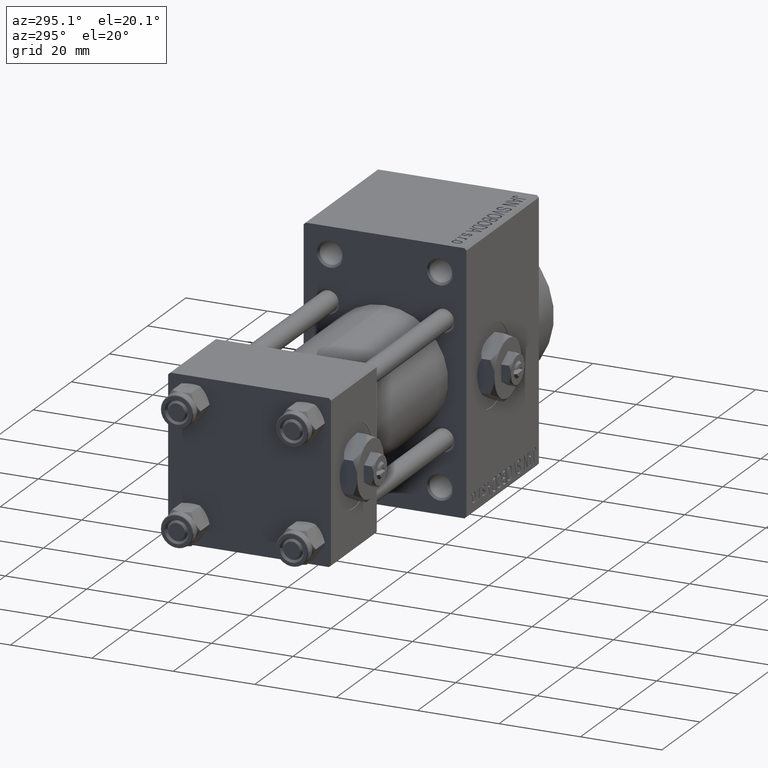
[diagram: clean part render]
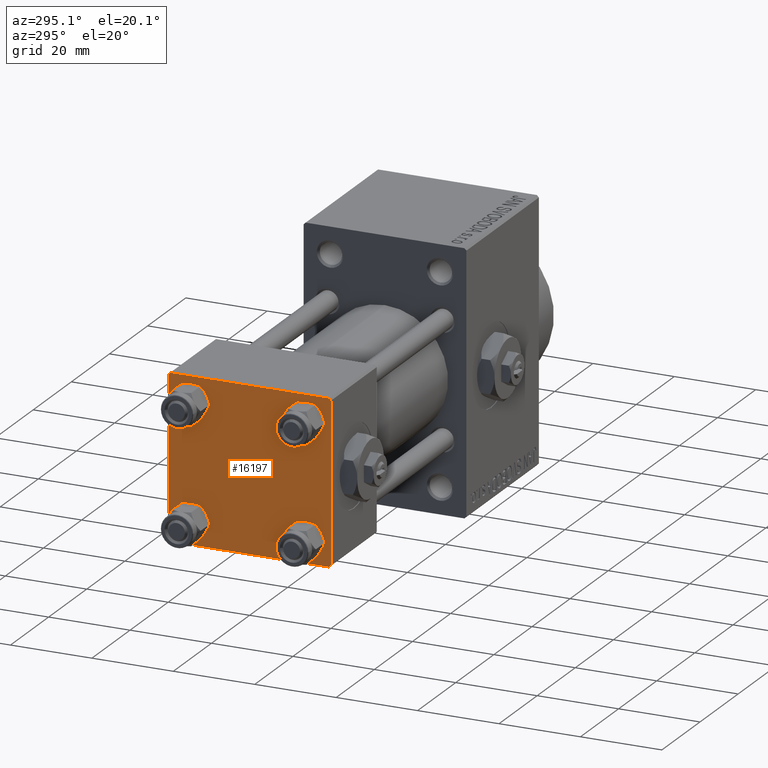
[diagram: same view with one face highlighted and labeled with its STEP entity id]
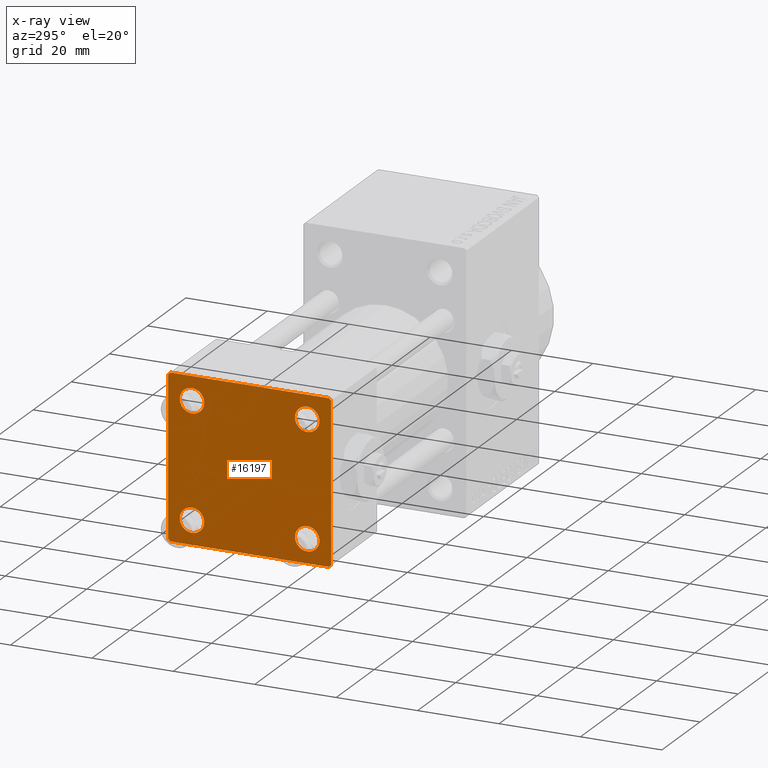
[diagram: x-ray of the same camera — body ghosted, the highlighted face saturated]
A machine part, auxiliary view. The second image highlights one B-rep face of the part: STEP entity #16197.
The next image is the same camera in x-ray: the body ghosted, the highlighted face saturated — about 0% of this face is hidden behind the body in this view.
In plain terms, the highlighted planar face has unit normal (-1, 0, 0).
Its self-contained STEP definition (entity closure, byte-faithful):
#36 = ORIENTED_EDGE ( 'NONE', *, *, #28452, .T. ) ;
#2782 = EDGE_CURVE ( 'NONE', #42553, #6724, #31262, .T. ) ;
#3675 = DIRECTION ( 'NONE',  ( 0.000000000000000000, 0.000000000000000000, 1.000000000000000000 ) ) ;
#3918 = DIRECTION ( 'NONE',  ( 1.000000000000000000, 0.000000000000000000, 0.000000000000000000 ) ) ;
#5561 = DIRECTION ( 'NONE',  ( 0.000000000000000000, 0.000000000000000000, 1.000000000000000000 ) ) ;
#5921 = LINE ( 'NONE', #47345, #11818 ) ;
#5965 = LINE ( 'NONE', #13673, #17464 ) ;
#6001 = DIRECTION ( 'NONE',  ( 0.000000000000000000, 0.000000000000000000, 1.000000000000000000 ) ) ;
#6591 = VERTEX_POINT ( 'NONE', #31078 ) ;
#6704 = EDGE_CURVE ( 'NONE', #40825, #41851, #26117, .T. ) ;
#6724 = VERTEX_POINT ( 'NONE', #47816 ) ;
#6961 = DIRECTION ( 'NONE',  ( 0.000000000000000000, -1.000000000000000000, 1.734723475976807094E-16 ) ) ;
#7127 = DIRECTION ( 'NONE',  ( 0.000000000000000000, 0.000000000000000000, 1.000000000000000000 ) ) ;
#7173 = CARTESIAN_POINT ( 'NONE',  ( 0.000000000000000000, -14.14999999999999503, 14.15000000000000391 ) ) ;
#7744 = EDGE_CURVE ( 'NONE', #11383, #47889, #45953, .T. ) ;
#7935 = CIRCLE ( 'NONE', #8721, 2.999999999999983569 ) ;
#8592 = EDGE_LOOP ( 'NONE', ( #12495, #19979 ) ) ;
#8721 = AXIS2_PLACEMENT_3D ( 'NONE', #20079, #34964, #30759 ) ;
#8911 = CARTESIAN_POINT ( 'NONE',  ( -0.000000000000000000, -19.74999999999992539, 19.75000000000006395 ) ) ;
#9056 = ORIENTED_EDGE ( 'NONE', *, *, #20878, .F. ) ;
#10248 = DIRECTION ( 'NONE',  ( 1.000000000000000000, 0.000000000000000000, 0.000000000000000000 ) ) ;
#10442 = CARTESIAN_POINT ( 'NONE',  ( 0.000000000000000000, 20.00000000000000000, -20.00000000000000711 ) ) ;
#10597 = EDGE_CURVE ( 'NONE', #41851, #40825, #7935, .T. ) ;
#10766 = ORIENTED_EDGE ( 'NONE', *, *, #2782, .T. ) ;
#10942 = DIRECTION ( 'NONE',  ( 1.000000000000000000, 0.000000000000000000, 0.000000000000000000 ) ) ;
#11008 = ORIENTED_EDGE ( 'NONE', *, *, #27094, .T. ) ;
#11294 = CARTESIAN_POINT ( 'NONE',  ( 0.000000000000000000, 19.50000000000000000, 20.00000000000000000 ) ) ;
#11383 = VERTEX_POINT ( 'NONE', #27595 ) ;
#11407 = VECTOR ( 'NONE', #21088, 1000.000000000000000 ) ;
#11509 = ORIENTED_EDGE ( 'NONE', *, *, #21836, .F. ) ;
#11574 = EDGE_CURVE ( 'NONE', #35171, #32304, #5965, .T. ) ;
#11818 = VECTOR ( 'NONE', #17349, 999.9999999999998863 ) ;
#11826 = VERTEX_POINT ( 'NONE', #11294 ) ;
#12079 = CARTESIAN_POINT ( 'NONE',  ( 0.000000000000000000, -19.50000000000000711, -20.00000000000000000 ) ) ;
#12495 = ORIENTED_EDGE ( 'NONE', *, *, #18478, .T. ) ;
#12908 = CARTESIAN_POINT ( 'NONE',  ( 0.000000000000000000, 14.14999999999999858, -11.15000000000001812 ) ) ;
#13028 = EDGE_LOOP ( 'NONE', ( #11008, #36 ) ) ;
#13097 = CARTESIAN_POINT ( 'NONE',  ( 0.000000000000000000, 14.14999999999999858, 17.14999999999998437 ) ) ;
#13129 = DIRECTION ( 'NONE',  ( -0.000000000000000000, 0.7071067811865500152, 0.7071067811865451302 ) ) ;
#13169 = CARTESIAN_POINT ( 'NONE',  ( 0.000000000000000000, -19.75000000000020961, -19.74999999999979394 ) ) ;
#13465 = CARTESIAN_POINT ( 'NONE',  ( 0.000000000000000000, 14.14999999999999858, 14.15000000000000036 ) ) ;
#13673 = CARTESIAN_POINT ( 'NONE',  ( -0.000000000000000000, 19.74999999999986855, -19.75000000000014211 ) ) ;
#14342 = CARTESIAN_POINT ( 'NONE',  ( 0.000000000000000000, -14.14999999999999503, -14.15000000000000391 ) ) ;
#14591 = CARTESIAN_POINT ( 'NONE',  ( 0.000000000000000000, -14.14999999999999503, 17.14999999999998792 ) ) ;
#14678 = FACE_BOUND ( 'NONE', #13028, .T. ) ;
#14768 = VECTOR ( 'NONE', #6961, 1000.000000000000000 ) ;
#14920 = CARTESIAN_POINT ( 'NONE',  ( 0.000000000000000000, 0.000000000000000000, 0.000000000000000000 ) ) ;
#15458 = ORIENTED_EDGE ( 'NONE', *, *, #40921, .T. ) ;
#15730 = CARTESIAN_POINT ( 'NONE',  ( 0.000000000000000000, -20.00000000000000355, 19.99999999999998934 ) ) ;
#16197 = ADVANCED_FACE ( 'NONE', ( #14678, #29818, #37478, #18635, #33764 ), #48873, .T. ) ;
#17349 = DIRECTION ( 'NONE',  ( 0.000000000000000000, 0.7071067811865425767, -0.7071067811865525687 ) ) ;
#17464 = VECTOR ( 'NONE', #22090, 1000.000000000000000 ) ;
#18061 = DIRECTION ( 'NONE',  ( 0.000000000000000000, 0.000000000000000000, 1.000000000000000000 ) ) ;
#18478 = EDGE_CURVE ( 'NONE', #47889, #11383, #35896, .T. ) ;
#18635 = FACE_BOUND ( 'NONE', #25749, .T. ) ;
#18741 = CARTESIAN_POINT ( 'NONE',  ( 0.000000000000000000, 20.00000000000000000, 20.00000000000000000 ) ) ;
#19979 = ORIENTED_EDGE ( 'NONE', *, *, #7744, .T. ) ;
#20079 = CARTESIAN_POINT ( 'NONE',  ( 0.000000000000000000, 14.14999999999999858, -14.15000000000000036 ) ) ;
#20147 = CARTESIAN_POINT ( 'NONE',  ( 0.000000000000000000, 14.14999999999999858, -14.15000000000000036 ) ) ;
#20878 = EDGE_CURVE ( 'NONE', #42553, #34674, #31117, .T. ) ;
#20908 = CARTESIAN_POINT ( 'NONE',  ( 0.000000000000000000, -20.00000000000000000, -19.49999999999999645 ) ) ;
#20919 = CIRCLE ( 'NONE', #33597, 2.999999999999983569 ) ;
#21088 = DIRECTION ( 'NONE',  ( 0.000000000000000000, -0.7071067811865401342, 0.7071067811865549002 ) ) ;
#21836 = EDGE_CURVE ( 'NONE', #11826, #6724, #26818, .T. ) ;
#22090 = DIRECTION ( 'NONE',  ( -0.000000000000000000, -0.7071067811865524577, -0.7071067811865426878 ) ) ;
#22309 = DIRECTION ( 'NONE',  ( 0.000000000000000000, 0.000000000000000000, 1.000000000000000000 ) ) ;
#22426 = ORIENTED_EDGE ( 'NONE', *, *, #47119, .T. ) ;
#23207 = ORIENTED_EDGE ( 'NONE', *, *, #11574, .T. ) ;
#23342 = VERTEX_POINT ( 'NONE', #12079 ) ;
#25554 = CARTESIAN_POINT ( 'NONE',  ( 0.000000000000000000, 14.14999999999999858, -17.14999999999998437 ) ) ;
#25749 = EDGE_LOOP ( 'NONE', ( #30128, #47250 ) ) ;
#25913 = VERTEX_POINT ( 'NONE', #13097 ) ;
#26117 = CIRCLE ( 'NONE', #32448, 2.999999999999983569 ) ;
#26818 = LINE ( 'NONE', #41678, #45307 ) ;
#26895 = EDGE_CURVE ( 'NONE', #6591, #25913, #20919, .T. ) ;
#27094 = EDGE_CURVE ( 'NONE', #38817, #48990, #36771, .T. ) ;
#27188 = EDGE_LOOP ( 'NONE', ( #44356, #43935 ) ) ;
#27525 = CARTESIAN_POINT ( 'NONE',  ( 0.000000000000000000, 20.00000000000000000, -19.50000000000002132 ) ) ;
#27595 = CARTESIAN_POINT ( 'NONE',  ( 0.000000000000000000, -14.14999999999999503, -17.15000000000000924 ) ) ;
#28452 = EDGE_CURVE ( 'NONE', #48990, #38817, #39221, .T. ) ;
#28908 = CARTESIAN_POINT ( 'NONE',  ( 0.000000000000000000, -14.14999999999999503, -11.15000000000000036 ) ) ;
#29509 = CARTESIAN_POINT ( 'NONE',  ( 0.000000000000000000, -14.14999999999999503, 14.15000000000000391 ) ) ;
#29510 = AXIS2_PLACEMENT_3D ( 'NONE', #14920, #42421, #34495 ) ;
#29818 = FACE_BOUND ( 'NONE', #8592, .T. ) ;
#29956 = CIRCLE ( 'NONE', #33868, 2.999999999999983569 ) ;
#30128 = ORIENTED_EDGE ( 'NONE', *, *, #38037, .T. ) ;
#30257 = DIRECTION ( 'NONE',  ( 1.000000000000000000, 0.000000000000000000, 0.000000000000000000 ) ) ;
#30411 = LINE ( 'NONE', #18741, #44155 ) ;
#30530 = AXIS2_PLACEMENT_3D ( 'NONE', #29509, #3918, #3675 ) ;
#30700 = EDGE_CURVE ( 'NONE', #32304, #23342, #48374, .T. ) ;
#30759 = DIRECTION ( 'NONE',  ( 0.000000000000000000, 0.000000000000000000, 1.000000000000000000 ) ) ;
#31078 = CARTESIAN_POINT ( 'NONE',  ( 0.000000000000000000, 14.14999999999999858, 11.15000000000001990 ) ) ;
#31117 = LINE ( 'NONE', #15730, #48421 ) ;
#31262 = LINE ( 'NONE', #8911, #41034 ) ;
#31460 = VERTEX_POINT ( 'NONE', #34861 ) ;
#32304 = VERTEX_POINT ( 'NONE', #46987 ) ;
#32448 = AXIS2_PLACEMENT_3D ( 'NONE', #20147, #46666, #18061 ) ;
#33312 = CARTESIAN_POINT ( 'NONE',  ( 0.000000000000000000, -14.14999999999999503, 11.15000000000002345 ) ) ;
#33597 = AXIS2_PLACEMENT_3D ( 'NONE', #13465, #43701, #6001 ) ;
#33764 = FACE_OUTER_BOUND ( 'NONE', #47964, .T. ) ;
#33868 = AXIS2_PLACEMENT_3D ( 'NONE', #40943, #10942, #5561 ) ;
#34495 = DIRECTION ( 'NONE',  ( -0.000000000000000000, 0.000000000000000000, 1.000000000000000000 ) ) ;
#34674 = VERTEX_POINT ( 'NONE', #20908 ) ;
#34861 = CARTESIAN_POINT ( 'NONE',  ( 0.000000000000000000, 20.00000000000000000, 19.49999999999999289 ) ) ;
#34964 = DIRECTION ( 'NONE',  ( 1.000000000000000000, 0.000000000000000000, 0.000000000000000000 ) ) ;
#35047 = ORIENTED_EDGE ( 'NONE', *, *, #30700, .T. ) ;
#35171 = VERTEX_POINT ( 'NONE', #27525 ) ;
#35196 = AXIS2_PLACEMENT_3D ( 'NONE', #7173, #30257, #22309 ) ;
#35896 = CIRCLE ( 'NONE', #43009, 3.000000000000004441 ) ;
#36771 = CIRCLE ( 'NONE', #35196, 2.999999999999983569 ) ;
#37141 = DIRECTION ( 'NONE',  ( 1.000000000000000000, 0.000000000000000000, 0.000000000000000000 ) ) ;
#37478 = FACE_BOUND ( 'NONE', #27188, .T. ) ;
#37480 = DIRECTION ( 'NONE',  ( 0.000000000000000000, -1.000000000000000000, -2.602085213965210149E-16 ) ) ;
#37796 = DIRECTION ( 'NONE',  ( 0.000000000000000000, 8.673617379884036705E-17, -1.000000000000000000 ) ) ;
#37855 = EDGE_CURVE ( 'NONE', #31460, #35171, #30411, .T. ) ;
#38037 = EDGE_CURVE ( 'NONE', #25913, #6591, #29956, .T. ) ;
#38817 = VERTEX_POINT ( 'NONE', #14591 ) ;
#39221 = CIRCLE ( 'NONE', #30530, 2.999999999999983569 ) ;
#39620 = AXIS2_PLACEMENT_3D ( 'NONE', #44214, #10248, #48431 ) ;
#40825 = VERTEX_POINT ( 'NONE', #12908 ) ;
#40921 = EDGE_CURVE ( 'NONE', #11826, #31460, #5921, .T. ) ;
#40943 = CARTESIAN_POINT ( 'NONE',  ( 0.000000000000000000, 14.14999999999999858, 14.15000000000000036 ) ) ;
#41034 = VECTOR ( 'NONE', #13129, 1000.000000000000114 ) ;
#41678 = CARTESIAN_POINT ( 'NONE',  ( 0.000000000000000000, 20.00000000000000000, 20.00000000000000000 ) ) ;
#41851 = VERTEX_POINT ( 'NONE', #25554 ) ;
#42421 = DIRECTION ( 'NONE',  ( -1.000000000000000000, 0.000000000000000000, -0.000000000000000000 ) ) ;
#42553 = VERTEX_POINT ( 'NONE', #43722 ) ;
#43009 = AXIS2_PLACEMENT_3D ( 'NONE', #14342, #37141, #7127 ) ;
#43444 = ORIENTED_EDGE ( 'NONE', *, *, #37855, .T. ) ;
#43701 = DIRECTION ( 'NONE',  ( 1.000000000000000000, 0.000000000000000000, 0.000000000000000000 ) ) ;
#43722 = CARTESIAN_POINT ( 'NONE',  ( 0.000000000000000000, -20.00000000000000355, 19.49999999999998224 ) ) ;
#43935 = ORIENTED_EDGE ( 'NONE', *, *, #10597, .T. ) ;
#44155 = VECTOR ( 'NONE', #45514, 1000.000000000000000 ) ;
#44214 = CARTESIAN_POINT ( 'NONE',  ( 0.000000000000000000, -14.14999999999999503, -14.15000000000000391 ) ) ;
#44356 = ORIENTED_EDGE ( 'NONE', *, *, #6704, .T. ) ;
#45307 = VECTOR ( 'NONE', #37480, 1000.000000000000000 ) ;
#45514 = DIRECTION ( 'NONE',  ( 0.000000000000000000, 0.000000000000000000, -1.000000000000000000 ) ) ;
#45953 = CIRCLE ( 'NONE', #39620, 3.000000000000004441 ) ;
#46666 = DIRECTION ( 'NONE',  ( 1.000000000000000000, 0.000000000000000000, 0.000000000000000000 ) ) ;
#46987 = CARTESIAN_POINT ( 'NONE',  ( 0.000000000000000000, 19.50000000000000711, -20.00000000000000711 ) ) ;
#47119 = EDGE_CURVE ( 'NONE', #23342, #34674, #47127, .T. ) ;
#47127 = LINE ( 'NONE', #13169, #11407 ) ;
#47250 = ORIENTED_EDGE ( 'NONE', *, *, #26895, .T. ) ;
#47345 = CARTESIAN_POINT ( 'NONE',  ( -0.000000000000000000, 19.75000000000013500, 19.74999999999986144 ) ) ;
#47816 = CARTESIAN_POINT ( 'NONE',  ( 0.000000000000000000, -19.49999999999999289, 19.99999999999998934 ) ) ;
#47889 = VERTEX_POINT ( 'NONE', #28908 ) ;
#47964 = EDGE_LOOP ( 'NONE', ( #43444, #23207, #35047, #22426, #9056, #10766, #11509, #15458 ) ) ;
#48374 = LINE ( 'NONE', #10442, #14768 ) ;
#48421 = VECTOR ( 'NONE', #37796, 1000.000000000000000 ) ;
#48431 = DIRECTION ( 'NONE',  ( 0.000000000000000000, 0.000000000000000000, 1.000000000000000000 ) ) ;
#48873 = PLANE ( 'NONE',  #29510 ) ;
#48990 = VERTEX_POINT ( 'NONE', #33312 ) ;